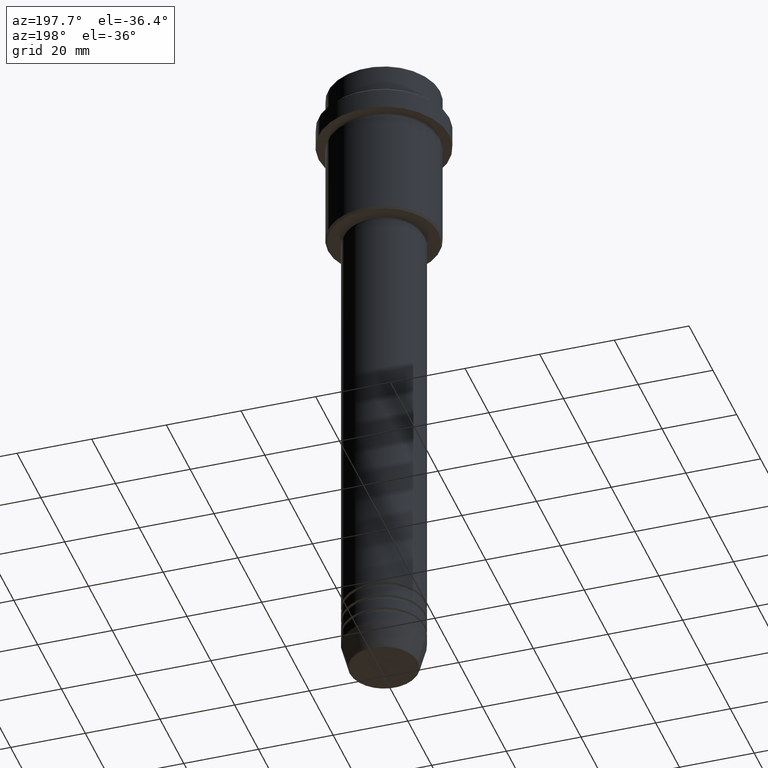
[diagram: clean part render]
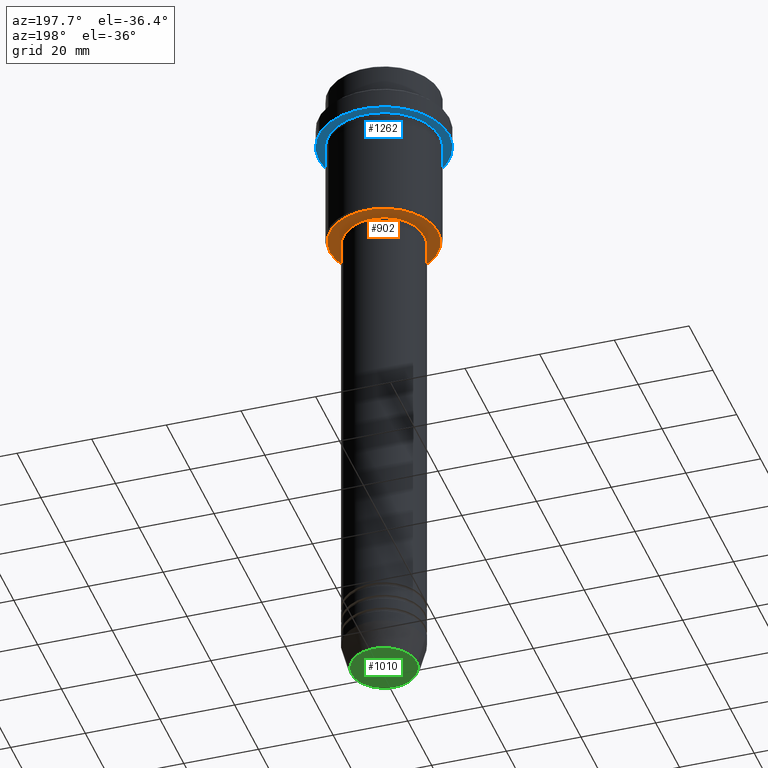
[diagram: same view with three faces highlighted in distinct colors, each labeled with its STEP entity id]
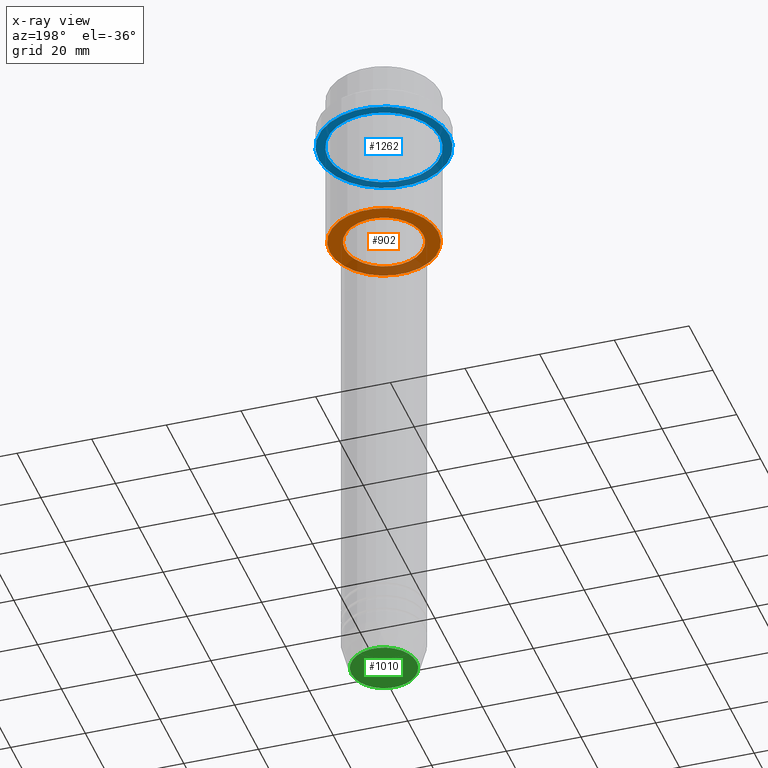
[diagram: x-ray of the same camera — body ghosted, the three highlighted faces saturated]
A machine part, auxiliary view with three faces highlighted in distinct colors.
The next image is the same camera in x-ray (body ghosted, the three faces saturated) — at least one of them is partly hidden behind the body in this view.
Their STEP definitions:

[orange] entity #902 — the highlighted planar face has unit normal (0, 0, -1).
#43 = AXIS2_PLACEMENT_3D ( 'NONE', #752, #865, #972 ) ;
#45 = CIRCLE ( 'NONE', #301, 14.50000000000001066 ) ;
#88 = EDGE_CURVE ( 'NONE', #1404, #210, #1003, .T. ) ;
#95 = EDGE_LOOP ( 'NONE', ( #643, #98 ) ) ;
#98 = ORIENTED_EDGE ( 'NONE', *, *, #235, .T. ) ;
#125 = VERTEX_POINT ( 'NONE', #704 ) ;
#133 = CIRCLE ( 'NONE', #1025, 14.50000000000001066 ) ;
#155 = AXIS2_PLACEMENT_3D ( 'NONE', #476, #826, #281 ) ;
#186 = CARTESIAN_POINT ( 'NONE',  ( 0.000000000000000000, 0.000000000000000000, -45.00000000000000000 ) ) ;
#203 = DIRECTION ( 'NONE',  ( -1.000000000000000000, 0.000000000000000000, 0.000000000000000000 ) ) ;
#210 = VERTEX_POINT ( 'NONE', #1364 ) ;
#213 = EDGE_LOOP ( 'NONE', ( #841, #928 ) ) ;
#228 = DIRECTION ( 'NONE',  ( 0.000000000000000000, 0.000000000000000000, -1.000000000000000000 ) ) ;
#235 = EDGE_CURVE ( 'NONE', #540, #125, #45, .T. ) ;
#281 = DIRECTION ( 'NONE',  ( -1.000000000000000000, 0.000000000000000000, -0.000000000000000000 ) ) ;
#301 = AXIS2_PLACEMENT_3D ( 'NONE', #879, #228, #1321 ) ;
#387 = AXIS2_PLACEMENT_3D ( 'NONE', #186, #519, #482 ) ;
#394 = FACE_BOUND ( 'NONE', #213, .T. ) ;
#428 = EDGE_CURVE ( 'NONE', #125, #540, #133, .T. ) ;
#433 = PLANE ( 'NONE',  #155 ) ;
#476 = CARTESIAN_POINT ( 'NONE',  ( 0.000000000000000000, 15.00000000000000000, -45.00000000000000000 ) ) ;
#482 = DIRECTION ( 'NONE',  ( 1.000000000000000000, 0.000000000000000000, 0.000000000000000000 ) ) ;
#489 = CARTESIAN_POINT ( 'NONE',  ( -14.50000000000001066, 1.806354028742346591E-15, -45.00000000000000000 ) ) ;
#519 = DIRECTION ( 'NONE',  ( -0.000000000000000000, -0.000000000000000000, 1.000000000000000000 ) ) ;
#540 = VERTEX_POINT ( 'NONE', #489 ) ;
#586 = CIRCLE ( 'NONE', #43, 10.49999999999999289 ) ;
#643 = ORIENTED_EDGE ( 'NONE', *, *, #428, .T. ) ;
#704 = CARTESIAN_POINT ( 'NONE',  ( 14.50000000000001066, 0.000000000000000000, -45.00000000000000000 ) ) ;
#752 = CARTESIAN_POINT ( 'NONE',  ( 0.000000000000000000, 0.000000000000000000, -45.00000000000000000 ) ) ;
#826 = DIRECTION ( 'NONE',  ( 0.000000000000000000, 0.000000000000000000, -1.000000000000000000 ) ) ;
#841 = ORIENTED_EDGE ( 'NONE', *, *, #1218, .T. ) ;
#858 = FACE_OUTER_BOUND ( 'NONE', #95, .T. ) ;
#865 = DIRECTION ( 'NONE',  ( -0.000000000000000000, -0.000000000000000000, 1.000000000000000000 ) ) ;
#879 = CARTESIAN_POINT ( 'NONE',  ( 0.000000000000000000, 0.000000000000000000, -45.00000000000000000 ) ) ;
#902 = ADVANCED_FACE ( 'NONE', ( #858, #394 ), #433, .T. ) ;
#928 = ORIENTED_EDGE ( 'NONE', *, *, #88, .T. ) ;
#972 = DIRECTION ( 'NONE',  ( 1.000000000000000000, 0.000000000000000000, 0.000000000000000000 ) ) ;
#1003 = CIRCLE ( 'NONE', #387, 10.49999999999999289 ) ;
#1025 = AXIS2_PLACEMENT_3D ( 'NONE', #1386, #1183, #203 ) ;
#1183 = DIRECTION ( 'NONE',  ( 0.000000000000000000, 0.000000000000000000, -1.000000000000000000 ) ) ;
#1218 = EDGE_CURVE ( 'NONE', #210, #1404, #586, .T. ) ;
#1321 = DIRECTION ( 'NONE',  ( -1.000000000000000000, 0.000000000000000000, 0.000000000000000000 ) ) ;
#1362 = CARTESIAN_POINT ( 'NONE',  ( -10.49999999999999289, 1.285879139104720042E-15, -45.00000000000000000 ) ) ;
#1364 = CARTESIAN_POINT ( 'NONE',  ( 10.49999999999999289, 0.000000000000000000, -45.00000000000000000 ) ) ;
#1386 = CARTESIAN_POINT ( 'NONE',  ( 0.000000000000000000, 0.000000000000000000, -45.00000000000000000 ) ) ;
#1404 = VERTEX_POINT ( 'NONE', #1362 ) ;

[blue] entity #1262 — the highlighted planar face has unit normal (0, 0, -1).
#4 = PLANE ( 'NONE',  #1324 ) ;
#60 = CARTESIAN_POINT ( 'NONE',  ( 17.50000000000000000, 0.000000000000000000, -15.00000000000000000 ) ) ;
#61 = EDGE_LOOP ( 'NONE', ( #229, #1235 ) ) ;
#118 = CARTESIAN_POINT ( 'NONE',  ( 14.99999999999999467, 1.836970198721029194E-15, -15.00000000000000000 ) ) ;
#196 = CARTESIAN_POINT ( 'NONE',  ( -17.50000000000000000, 2.143131898507868248E-15, -15.00000000000000000 ) ) ;
#209 = CARTESIAN_POINT ( 'NONE',  ( -14.99999999999999467, 0.000000000000000000, -15.00000000000000000 ) ) ;
#226 = CIRCLE ( 'NONE', #746, 17.50000000000000000 ) ;
#229 = ORIENTED_EDGE ( 'NONE', *, *, #337, .F. ) ;
#256 = VERTEX_POINT ( 'NONE', #209 ) ;
#260 = DIRECTION ( 'NONE',  ( -1.000000000000000000, 0.000000000000000000, 0.000000000000000000 ) ) ;
#337 = EDGE_CURVE ( 'NONE', #351, #897, #226, .T. ) ;
#351 = VERTEX_POINT ( 'NONE', #60 ) ;
#358 = DIRECTION ( 'NONE',  ( -0.000000000000000000, -0.000000000000000000, 1.000000000000000000 ) ) ;
#410 = CIRCLE ( 'NONE', #1369, 14.99999999999999467 ) ;
#438 = CARTESIAN_POINT ( 'NONE',  ( 0.000000000000000000, 17.50000000000000000, -15.00000000000000000 ) ) ;
#481 = DIRECTION ( 'NONE',  ( -1.000000000000000000, 0.000000000000000000, 0.000000000000000000 ) ) ;
#527 = CIRCLE ( 'NONE', #1396, 17.50000000000000000 ) ;
#541 = FACE_BOUND ( 'NONE', #797, .T. ) ;
#746 = AXIS2_PLACEMENT_3D ( 'NONE', #1221, #358, #1243 ) ;
#797 = EDGE_LOOP ( 'NONE', ( #861, #1069 ) ) ;
#861 = ORIENTED_EDGE ( 'NONE', *, *, #924, .T. ) ;
#868 = AXIS2_PLACEMENT_3D ( 'NONE', #1333, #999, #481 ) ;
#872 = DIRECTION ( 'NONE',  ( 0.000000000000000000, 0.000000000000000000, -1.000000000000000000 ) ) ;
#876 = DIRECTION ( 'NONE',  ( 1.000000000000000000, 0.000000000000000000, 0.000000000000000000 ) ) ;
#897 = VERTEX_POINT ( 'NONE', #196 ) ;
#924 = EDGE_CURVE ( 'NONE', #256, #1276, #410, .T. ) ;
#977 = FACE_OUTER_BOUND ( 'NONE', #61, .T. ) ;
#999 = DIRECTION ( 'NONE',  ( -0.000000000000000000, -0.000000000000000000, 1.000000000000000000 ) ) ;
#1069 = ORIENTED_EDGE ( 'NONE', *, *, #1355, .T. ) ;
#1088 = DIRECTION ( 'NONE',  ( -0.000000000000000000, -0.000000000000000000, 1.000000000000000000 ) ) ;
#1161 = CARTESIAN_POINT ( 'NONE',  ( 0.000000000000000000, 0.000000000000000000, -15.00000000000000000 ) ) ;
#1221 = CARTESIAN_POINT ( 'NONE',  ( 0.000000000000000000, 0.000000000000000000, -15.00000000000000000 ) ) ;
#1235 = ORIENTED_EDGE ( 'NONE', *, *, #1247, .F. ) ;
#1239 = DIRECTION ( 'NONE',  ( -0.000000000000000000, -0.000000000000000000, 1.000000000000000000 ) ) ;
#1243 = DIRECTION ( 'NONE',  ( 1.000000000000000000, 0.000000000000000000, 0.000000000000000000 ) ) ;
#1247 = EDGE_CURVE ( 'NONE', #897, #351, #527, .T. ) ;
#1262 = ADVANCED_FACE ( 'NONE', ( #541, #977 ), #4, .T. ) ;
#1263 = CIRCLE ( 'NONE', #868, 14.99999999999999467 ) ;
#1276 = VERTEX_POINT ( 'NONE', #118 ) ;
#1310 = CARTESIAN_POINT ( 'NONE',  ( 0.000000000000000000, 0.000000000000000000, -15.00000000000000000 ) ) ;
#1324 = AXIS2_PLACEMENT_3D ( 'NONE', #438, #872, #1326 ) ;
#1326 = DIRECTION ( 'NONE',  ( -1.000000000000000000, 0.000000000000000000, -0.000000000000000000 ) ) ;
#1333 = CARTESIAN_POINT ( 'NONE',  ( 0.000000000000000000, 0.000000000000000000, -15.00000000000000000 ) ) ;
#1355 = EDGE_CURVE ( 'NONE', #1276, #256, #1263, .T. ) ;
#1369 = AXIS2_PLACEMENT_3D ( 'NONE', #1161, #1239, #260 ) ;
#1396 = AXIS2_PLACEMENT_3D ( 'NONE', #1310, #1088, #876 ) ;

[green] entity #1010 — the highlighted planar face has unit normal (0, -0, 1).
#73 = DIRECTION ( 'NONE',  ( 1.000000000000000000, 0.000000000000000000, 0.000000000000000000 ) ) ;
#86 = EDGE_CURVE ( 'NONE', #1360, #219, #137, .T. ) ;
#119 = DIRECTION ( 'NONE',  ( 0.000000000000000000, 0.000000000000000000, -1.000000000000000000 ) ) ;
#137 = CIRCLE ( 'NONE', #799, 8.740692158992663607 ) ;
#163 = PLANE ( 'NONE',  #275 ) ;
#201 = CARTESIAN_POINT ( 'NONE',  ( -8.740692158992663607, 1.099999016768740442E-15, -180.0000000000000000 ) ) ;
#219 = VERTEX_POINT ( 'NONE', #201 ) ;
#275 = AXIS2_PLACEMENT_3D ( 'NONE', #589, #1153, #594 ) ;
#388 = AXIS2_PLACEMENT_3D ( 'NONE', #828, #839, #73 ) ;
#589 = CARTESIAN_POINT ( 'NONE',  ( 0.000000000000000000, 0.000000000000000000, -180.0000000000000000 ) ) ;
#594 = DIRECTION ( 'NONE',  ( 1.000000000000000000, 0.000000000000000000, 0.000000000000000000 ) ) ;
#619 = EDGE_CURVE ( 'NONE', #219, #1360, #1004, .T. ) ;
#753 = EDGE_LOOP ( 'NONE', ( #1291, #840 ) ) ;
#794 = CARTESIAN_POINT ( 'NONE',  ( 8.740692158992663607, 0.000000000000000000, -180.0000000000000000 ) ) ;
#799 = AXIS2_PLACEMENT_3D ( 'NONE', #1100, #119, #1382 ) ;
#828 = CARTESIAN_POINT ( 'NONE',  ( 0.000000000000000000, 0.000000000000000000, -180.0000000000000000 ) ) ;
#839 = DIRECTION ( 'NONE',  ( 0.000000000000000000, 0.000000000000000000, -1.000000000000000000 ) ) ;
#840 = ORIENTED_EDGE ( 'NONE', *, *, #619, .T. ) ;
#1004 = CIRCLE ( 'NONE', #388, 8.740692158992663607 ) ;
#1010 = ADVANCED_FACE ( 'NONE', ( #1143 ), #163, .F. ) ;
#1100 = CARTESIAN_POINT ( 'NONE',  ( 0.000000000000000000, 0.000000000000000000, -180.0000000000000000 ) ) ;
#1143 = FACE_OUTER_BOUND ( 'NONE', #753, .T. ) ;
#1153 = DIRECTION ( 'NONE',  ( 0.000000000000000000, -0.000000000000000000, 1.000000000000000000 ) ) ;
#1291 = ORIENTED_EDGE ( 'NONE', *, *, #86, .T. ) ;
#1360 = VERTEX_POINT ( 'NONE', #794 ) ;
#1382 = DIRECTION ( 'NONE',  ( 1.000000000000000000, 0.000000000000000000, 0.000000000000000000 ) ) ;